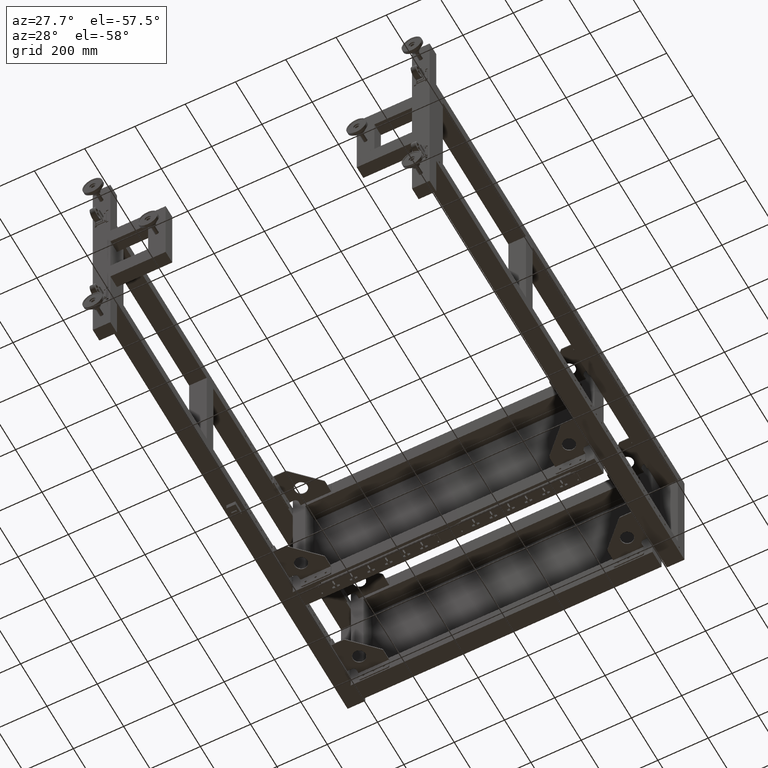
[diagram: clean part render]
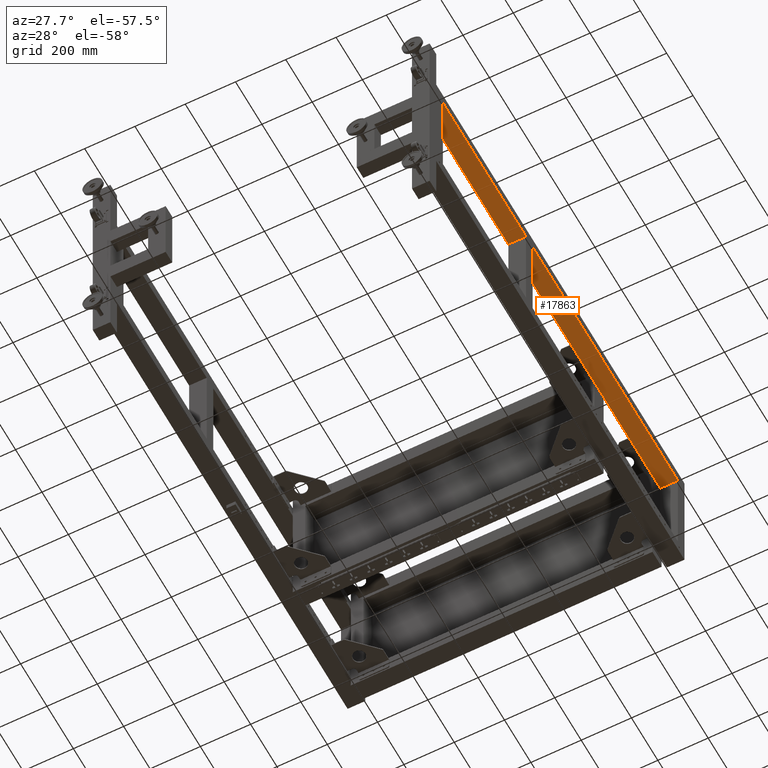
[diagram: same view with one face highlighted and labeled with its STEP entity id]
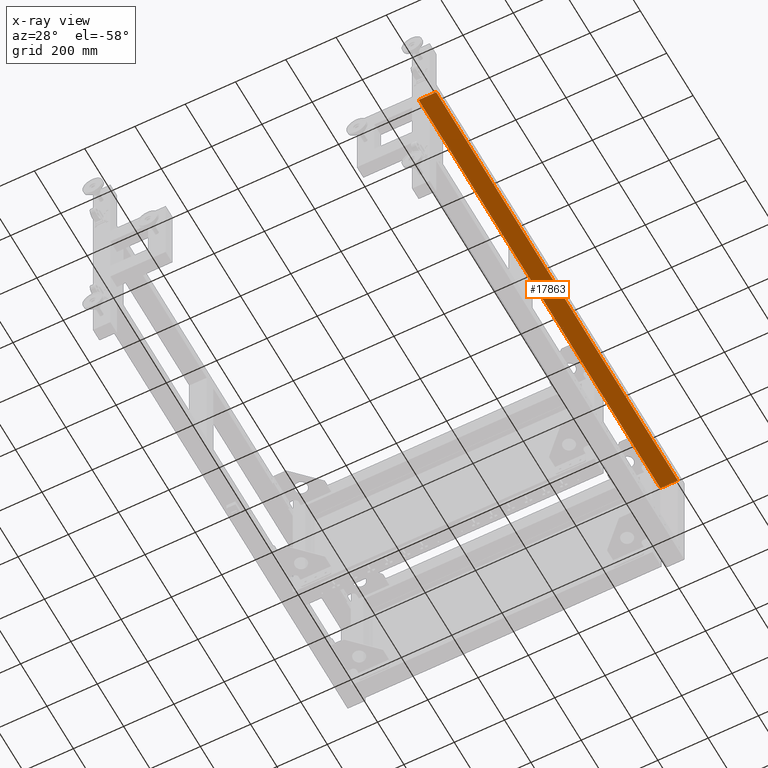
[diagram: x-ray of the same camera — body ghosted, the highlighted face saturated]
A machine part, auxiliary view. The second image highlights one B-rep face of the part: STEP entity #17863.
The next image is the same camera in x-ray: the body ghosted, the highlighted face saturated — about 0% of this face is hidden behind the body in this view.
In plain terms, the highlighted planar face has unit normal (0, 0, 1).
Its self-contained STEP definition (entity closure, byte-faithful):
#451 = DIRECTION ( 'NONE',  ( 1.000000000000000000, 2.251766706479394348E-16, 0.000000000000000000 ) ) ;
#586 = ORIENTED_EDGE ( 'NONE', *, *, #57887, .T. ) ;
#732 = PLANE ( 'NONE',  #12883 ) ;
#995 = LINE ( 'NONE', #68038, #39789 ) ;
#3068 = DIRECTION ( 'NONE',  ( -1.000000000000000000, -6.700651583353614395E-16, 0.000000000000000000 ) ) ;
#3147 = ORIENTED_EDGE ( 'NONE', *, *, #50341, .F. ) ;
#3774 = CARTESIAN_POINT ( 'NONE',  ( -68.17248743718451465, -844.5589195979887336, 199.9999999999999716 ) ) ;
#4780 = DIRECTION ( 'NONE',  ( 1.225176670647939315E-15, -1.000000000000000000, -0.000000000000000000 ) ) ;
#5081 = CARTESIAN_POINT ( 'NONE',  ( -68.17248743718495518, 919.4410804020137675, 199.9999999999999716 ) ) ;
#6242 = EDGE_CURVE ( 'NONE', #46721, #57093, #33332, .T. ) ;
#8162 = VECTOR ( 'NONE', #4780, 1000.000000000000000 ) ;
#8406 = VECTOR ( 'NONE', #3068, 1000.000000000000000 ) ;
#9076 = DIRECTION ( 'NONE',  ( -2.251766706479394348E-16, 1.000000000000000000, 0.000000000000000000 ) ) ;
#12607 = EDGE_LOOP ( 'NONE', ( #41973, #25438, #586, #70211, #3147, #55720, #47807, #20633 ) ) ;
#12883 = AXIS2_PLACEMENT_3D ( 'NONE', #79953, #24319, #42992 ) ;
#13156 = EDGE_CURVE ( 'NONE', #71164, #60061, #58866, .T. ) ;
#14902 = VERTEX_POINT ( 'NONE', #79847 ) ;
#17863 = ADVANCED_FACE ( 'NONE', ( #55197 ), #732, .F. ) ;
#19458 = EDGE_CURVE ( 'NONE', #57093, #26236, #52909, .T. ) ;
#20633 = ORIENTED_EDGE ( 'NONE', *, *, #78593, .F. ) ;
#20733 = CARTESIAN_POINT ( 'NONE',  ( 1.827512562815769570, 986.4410804020111527, 199.9999999999999716 ) ) ;
#23691 = DIRECTION ( 'NONE',  ( 1.225176670647939512E-15, -1.000000000000000000, 0.000000000000000000 ) ) ;
#24319 = DIRECTION ( 'NONE',  ( 0.000000000000000000, 0.000000000000000000, 1.000000000000000000 ) ) ;
#25438 = ORIENTED_EDGE ( 'NONE', *, *, #19458, .T. ) ;
#26236 = VERTEX_POINT ( 'NONE', #79313 ) ;
#26635 = VECTOR ( 'NONE', #23691, 1000.000000000000000 ) ;
#28265 = VECTOR ( 'NONE', #9076, 1000.000000000000000 ) ;
#32038 = EDGE_CURVE ( 'NONE', #14902, #53823, #77308, .T. ) ;
#33332 = LINE ( 'NONE', #20733, #68580 ) ;
#33951 = LINE ( 'NONE', #58736, #8406 ) ;
#34303 = DIRECTION ( 'NONE',  ( -1.000000000000000000, -2.251766706479394348E-16, 0.000000000000000000 ) ) ;
#37336 = CARTESIAN_POINT ( 'NONE',  ( -68.18853048807626749, 919.4410804020137675, 199.9999999999999716 ) ) ;
#39067 = VECTOR ( 'NONE', #34303, 1000.000000000000000 ) ;
#39789 = VECTOR ( 'NONE', #55475, 1000.000000000000000 ) ;
#40292 = CARTESIAN_POINT ( 'NONE',  ( 1.827512562814881392, 986.4410804020138812, 199.9999999999999716 ) ) ;
#40936 = CARTESIAN_POINT ( 'NONE',  ( 1.827512562815769570, 986.4410804020111527, 199.9999999999999716 ) ) ;
#41973 = ORIENTED_EDGE ( 'NONE', *, *, #6242, .T. ) ;
#42992 = DIRECTION ( 'NONE',  ( -1.000000000000000000, -2.251766706479394348E-16, 0.000000000000000000 ) ) ;
#45302 = CARTESIAN_POINT ( 'NONE',  ( 1.827512562815325481, -844.5589195979887336, 199.9999999999999716 ) ) ;
#46721 = VERTEX_POINT ( 'NONE', #68655 ) ;
#47807 = ORIENTED_EDGE ( 'NONE', *, *, #64747, .F. ) ;
#50341 = EDGE_CURVE ( 'NONE', #60061, #53823, #995, .T. ) ;
#52909 = LINE ( 'NONE', #40292, #74841 ) ;
#53823 = VERTEX_POINT ( 'NONE', #5081 ) ;
#54362 = CARTESIAN_POINT ( 'NONE',  ( -68.18853048807626749, 986.4410804020138812, 199.9999999999999716 ) ) ;
#55197 = FACE_OUTER_BOUND ( 'NONE', #12607, .T. ) ;
#55475 = DIRECTION ( 'NONE',  ( 1.000000000000000000, 1.810846149024760977E-15, 0.000000000000000000 ) ) ;
#55720 = ORIENTED_EDGE ( 'NONE', *, *, #13156, .F. ) ;
#57093 = VERTEX_POINT ( 'NONE', #40936 ) ;
#57887 = EDGE_CURVE ( 'NONE', #26236, #14902, #76157, .T. ) ;
#58736 = CARTESIAN_POINT ( 'NONE',  ( -68.17248743718407411, 926.9410804020113801, 199.9999999999999716 ) ) ;
#58866 = LINE ( 'NONE', #54362, #8162 ) ;
#59375 = DIRECTION ( 'NONE',  ( 1.225176670647939315E-15, -1.000000000000000000, -0.000000000000000000 ) ) ;
#60061 = VERTEX_POINT ( 'NONE', #37336 ) ;
#64747 = EDGE_CURVE ( 'NONE', #72926, #71164, #33951, .T. ) ;
#65927 = CARTESIAN_POINT ( 'NONE',  ( -68.17248743718407411, 926.9410804020113801, 199.9999999999999716 ) ) ;
#68038 = CARTESIAN_POINT ( 'NONE',  ( 1.827512562814881392, 919.4410804020138812, 199.9999999999999716 ) ) ;
#68580 = VECTOR ( 'NONE', #451, 1000.000000000000000 ) ;
#68655 = CARTESIAN_POINT ( 'NONE',  ( -68.17248743718407411, 986.4410804020137675, 199.9999999999999716 ) ) ;
#70211 = ORIENTED_EDGE ( 'NONE', *, *, #32038, .T. ) ;
#71164 = VERTEX_POINT ( 'NONE', #71309 ) ;
#71309 = CARTESIAN_POINT ( 'NONE',  ( -68.18853048807626749, 926.9410804020113801, 199.9999999999999716 ) ) ;
#72926 = VERTEX_POINT ( 'NONE', #65927 ) ;
#74460 = CARTESIAN_POINT ( 'NONE',  ( -68.17248743718407411, 996.9410804020111527, 199.9999999999999716 ) ) ;
#74841 = VECTOR ( 'NONE', #59375, 1000.000000000000000 ) ;
#76157 = LINE ( 'NONE', #45302, #39067 ) ;
#77308 = LINE ( 'NONE', #3774, #28265 ) ;
#78593 = EDGE_CURVE ( 'NONE', #46721, #72926, #79342, .T. ) ;
#79313 = CARTESIAN_POINT ( 'NONE',  ( 1.827512562815325481, -844.5589195979887336, 199.9999999999999716 ) ) ;
#79342 = LINE ( 'NONE', #74460, #26635 ) ;
#79847 = CARTESIAN_POINT ( 'NONE',  ( -68.17248743718451465, -844.5589195979887336, 199.9999999999999716 ) ) ;
#79953 = CARTESIAN_POINT ( 'NONE',  ( 1.827512562814881392, 986.4410804020138812, 199.9999999999999716 ) ) ;